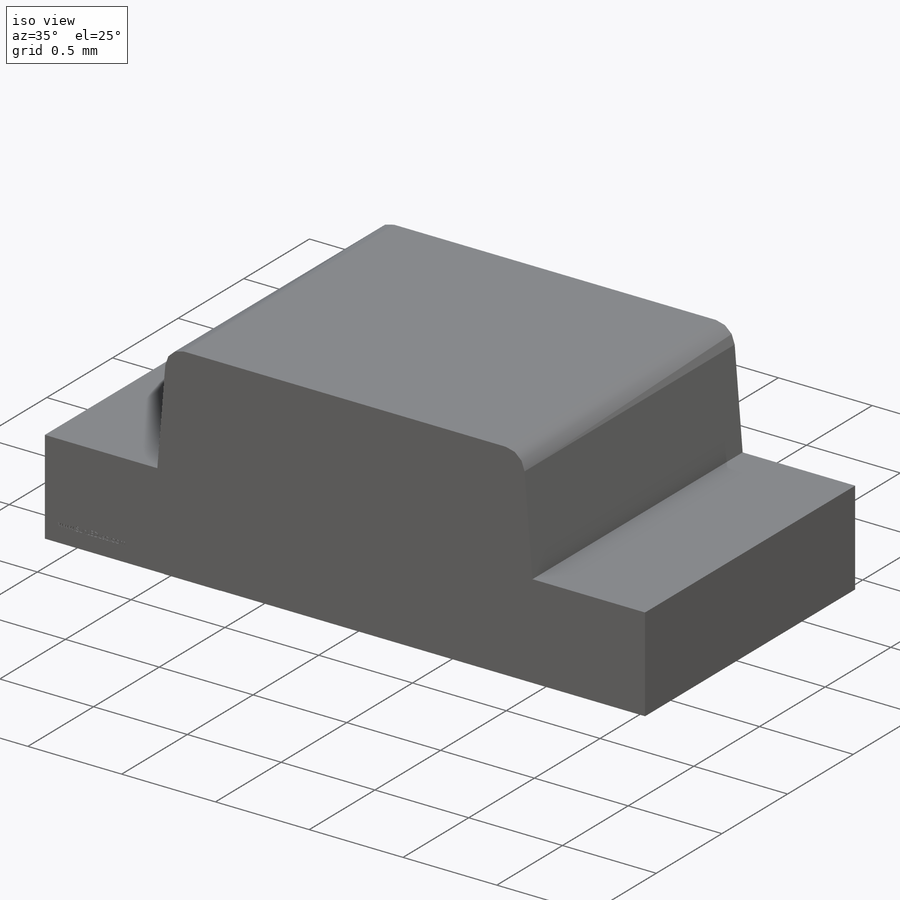
[diagram: iso view]
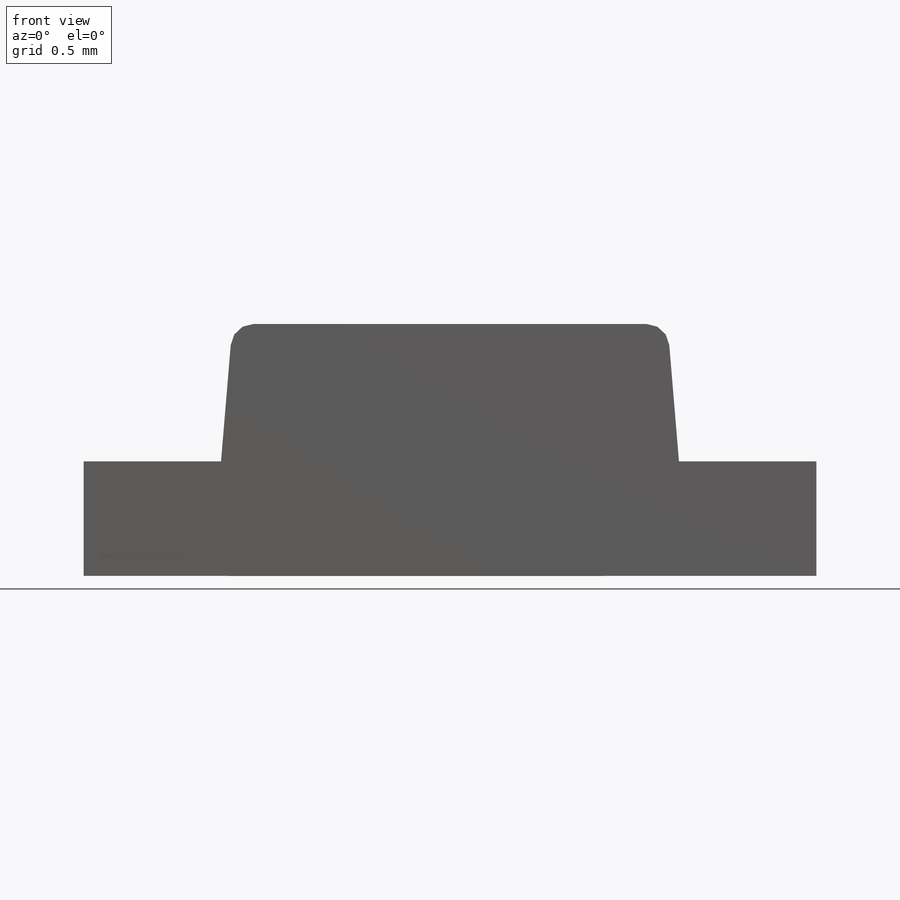
[diagram: front view]
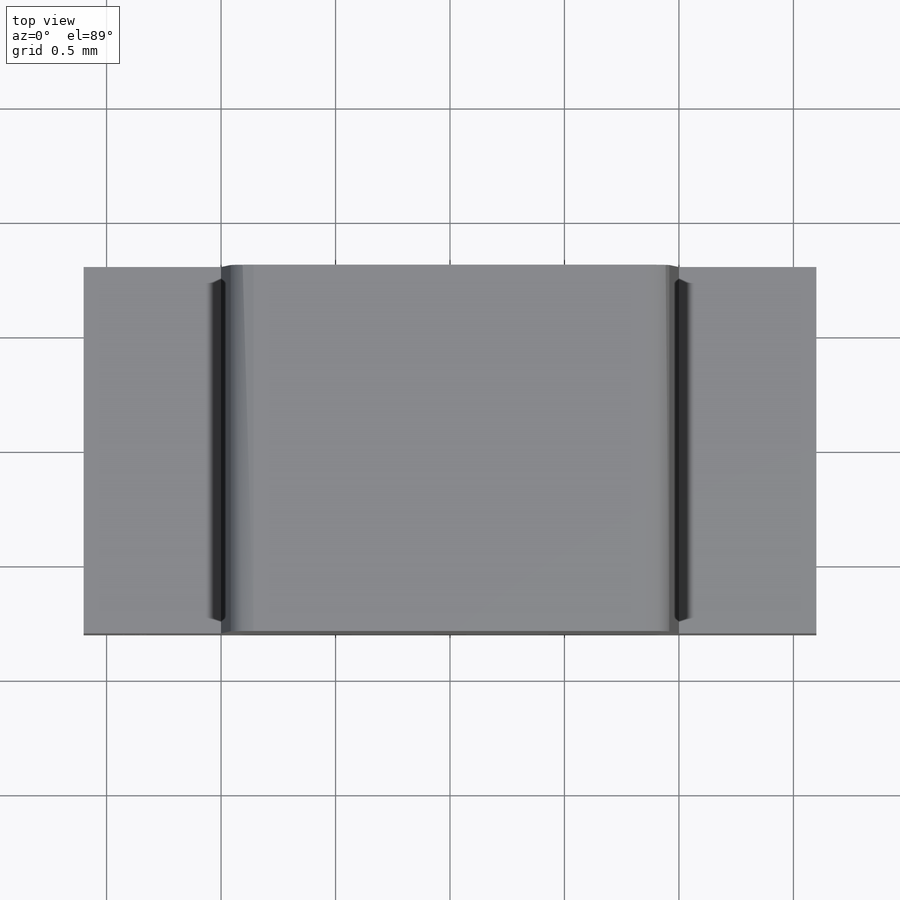
[diagram: top view]
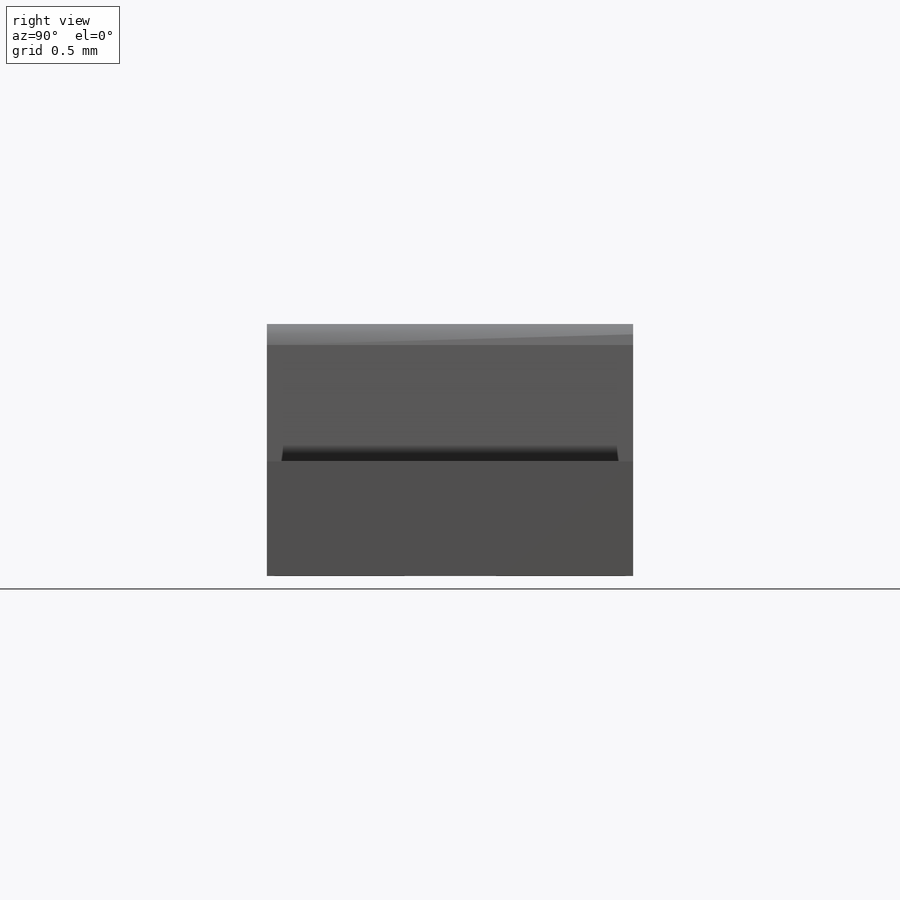
[diagram: right view]
SOLIDWORKS PART (.sldprt)
format: sldprt  version: not decoded by parser v0  size: 747,520 bytes
history: native  units: mm
features: sketch x6, extrude x5, material x1, fillet x1, cut_extrude x1 (+12 scaffold rows collapsed)
feature tree (26):
  scaffold x12  (default folders/planes/origin — collapsed)
  material  "Material <not specified>"
  sketch  "Sketch1"  dims[D1=0.5mm D2=3.2mm D3=2.0mm D4=1.9mm D5=1.1mm D6=0.5mm D7=0.03mm D8=0.03mm D9=0.2mm D10=0.03mm]
  extrude  "Extrude1"  Depth=1.6mm
  extrude  "Extrude2"  [1 undecoded]
  sketch  "Sketch1<3>"  dims[D1=1.6mm]
  fillet  "Fillet1"  Radius=0.1mm
  extrude  "Extrude3"  [1 undecoded]
  sketch  "Sketch1<4>"  dims[D1=1.6mm]
  sketch  "Sketch2"  dims[D1=0.3mm D2=0.4mm]
  extrude  "Extrude4"  Depth=0.02mm
  sketch  "Sketch3"  dims[D1=0.2mm D2=0.2mm]
  extrude  "Extrude5"  Depth=0.03mm
  sketch  "Sketch4"  dims[D1=0.5mm D2=0.08mm]
  cut_extrude  "Cut-Extrude1"  Depth=0.01mm
decode coverage: 11 of 13 modeling features carry decoded parameters
note: 2 parameter values undecoded
note: suppression state not decoded; provenance and decode notes live in map.json
